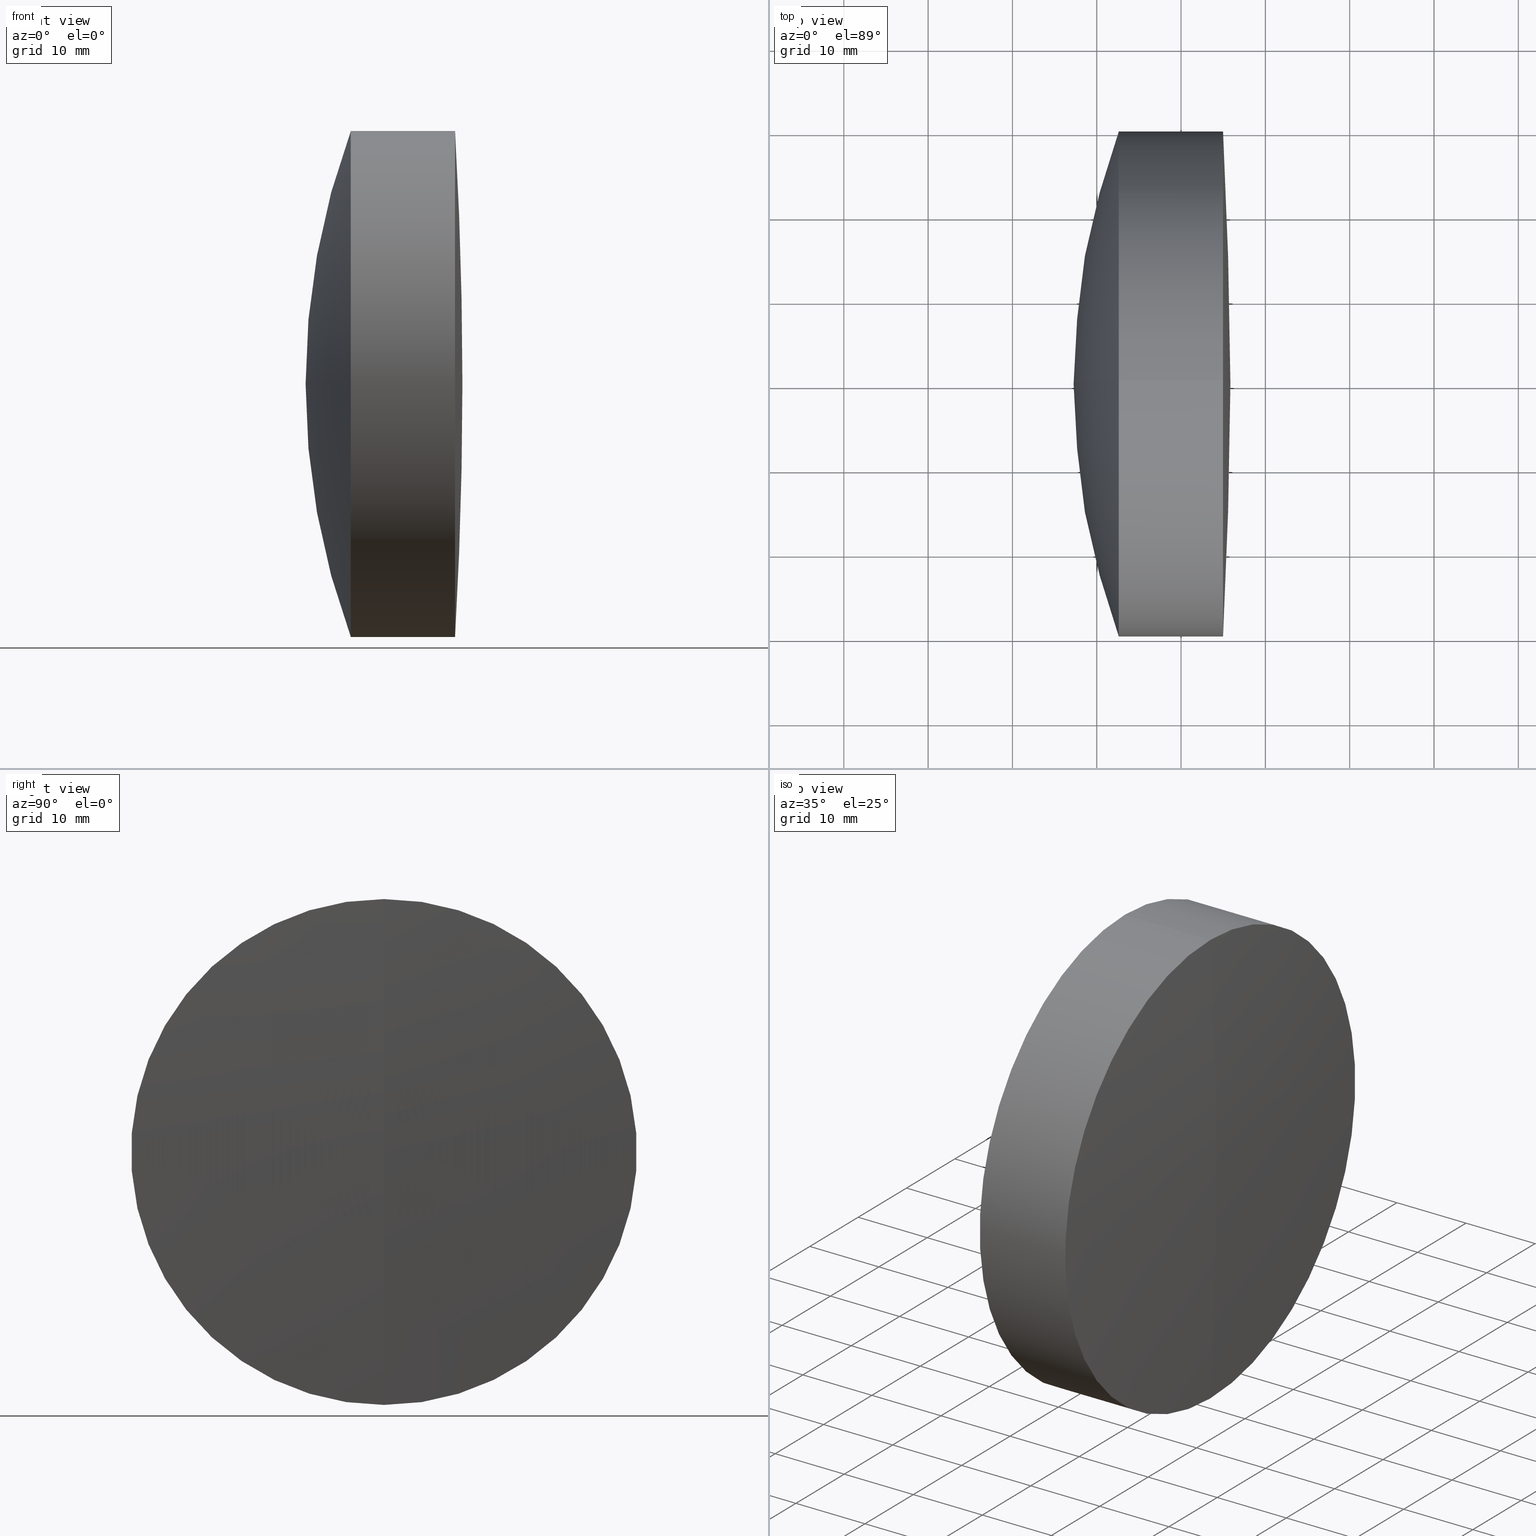
[diagram: canonical four-view strip — front | top / right | iso, engineering-drawing reading convention]
A machine part, canonical four-view strip (front | top / right | iso — engineering-drawing reading convention). The complete STEP part file that produces these views, byte-faithful:
ISO-10303-21;
HEADER;
FILE_DESCRIPTION (( 'STEP AP214' ),
    '1' );
FILE_NAME ('145096.STEP',
    '2019-05-28T01:51:14',
    ( 'user' ),
    ( '΢���й�' ),
    'SwSTEP 2.0',
    'SolidWorks 2016',
    '' );
FILE_SCHEMA (( 'AUTOMOTIVE_DESIGN' ));
ENDSEC;

DATA;
#1 = AXIS2_PLACEMENT_3D ( 'NONE', #165, #191, #329 ) ;
#2 = ORIENTED_EDGE ( 'NONE', *, *, #232, .T. ) ;
#3 =( LENGTH_UNIT ( ) NAMED_UNIT ( * ) SI_UNIT ( .MILLI., .METRE. ) );
#4 = CARTESIAN_POINT ( 'NONE',  ( 285.4402420783391700, 0.0000000000000000000, 0.0000000000000000000 ) ) ;
#5 = FILL_AREA_STYLE_COLOUR ( '', #227 ) ;
#6 = EDGE_CURVE ( 'NONE', #287, #156, #171, .T. ) ;
#7 = DIRECTION ( 'NONE',  ( -0.0000000000000000000, 1.000000000000000000, 1.224646799147353200E-016 ) ) ;
#8 = VERTEX_POINT ( 'NONE', #184 ) ;
#9 = MECHANICAL_DESIGN_GEOMETRIC_PRESENTATION_REPRESENTATION (  '', ( #124 ), #340 ) ;
#10 = CARTESIAN_POINT ( 'NONE',  ( 285.4402420783391700, 3.673940397442063100E-015, -30.00000000000003200 ) ) ;
#11 = ADVANCED_FACE ( 'NONE', ( #346 ), #342, .T. ) ;
#12 = AXIS2_PLACEMENT_3D ( 'NONE', #245, #274, #114 ) ;
#13 = MECHANICAL_DESIGN_GEOMETRIC_PRESENTATION_REPRESENTATION (  '', ( #197 ), #271 ) ;
#14 = DIRECTION ( 'NONE',  ( -1.000000000000000000, -0.0000000000000000000, -0.0000000000000000000 ) ) ;
#15 = VERTEX_POINT ( 'NONE', #168 ) ;
#16 = DIRECTION ( 'NONE',  ( 0.0000000000000000000, 0.0000000000000000000, 1.000000000000000000 ) ) ;
#17 = EDGE_LOOP ( 'NONE', ( #230, #147, #180, #187 ) ) ;
#18 = ORIENTED_EDGE ( 'NONE', *, *, #23, .T. ) ;
#19 = PRESENTATION_LAYER_ASSIGNMENT (  '', '', ( #197 ) ) ;
#20 = ORIENTED_EDGE ( 'NONE', *, *, #176, .T. ) ;
#21 = CARTESIAN_POINT ( 'NONE',  ( 295.8536255512254300, 0.0000000000000000000, 3.158486559680939000E-014 ) ) ;
#22 = DIRECTION ( 'NONE',  ( 0.0000000000000000000, 1.000000000000000000, 0.0000000000000000000 ) ) ;
#23 = EDGE_CURVE ( 'NONE', #214, #94, #69, .T. ) ;
#24 = AXIS2_PLACEMENT_3D ( 'NONE', #215, #267, #163 ) ;
#25 = DIRECTION ( 'NONE',  ( -1.000000000000000000, -0.0000000000000000000, -0.0000000000000000000 ) ) ;
#26 = ORIENTED_EDGE ( 'NONE', *, *, #130, .F. ) ;
#27 = CARTESIAN_POINT ( 'NONE',  ( -219.9663744487746400, 0.0000000000000000000, 0.0000000000000000000 ) ) ;
#28 = MANIFOLD_SOLID_BREP ( '��ת1', #164 ) ;
#29 = SURFACE_SIDE_STYLE ('',( #257 ) ) ;
#30 = DIRECTION ( 'NONE',  ( -1.000000000000000000, -0.0000000000000000000, -0.0000000000000000000 ) ) ;
#31 = FILL_AREA_STYLE_COLOUR ( '', #127 ) ;
#32 = VERTEX_POINT ( 'NONE', #289 ) ;
#33 = CARTESIAN_POINT ( 'NONE',  ( 294.9804892177594400, 0.0000000000000000000, 30.00000000000001400 ) ) ;
#34 = CARTESIAN_POINT ( 'NONE',  ( 216.1226255512254100, 0.0000000000000000000, 0.0000000000000000000 ) ) ;
#35 = DIRECTION ( 'NONE',  ( 0.0000000000000000000, 0.0000000000000000000, 1.000000000000000000 ) ) ;
#36 = CARTESIAN_POINT ( 'NONE',  ( 294.9804892177594400, 3.673940397442061500E-015, -30.00000000000001400 ) ) ;
#37 = ORIENTED_EDGE ( 'NONE', *, *, #99, .F. ) ;
#38 = ADVANCED_FACE ( 'NONE', ( #258 ), #285, .T. ) ;
#39 = ORIENTED_EDGE ( 'NONE', *, *, #242, .T. ) ;
#40 = CYLINDRICAL_SURFACE ( 'NONE', #42, 30.00000000000002100 ) ;
#41 = SURFACE_STYLE_FILL_AREA ( #76 ) ;
#42 = AXIS2_PLACEMENT_3D ( 'NONE', #221, #347, #35 ) ;
#43 = FACE_OUTER_BOUND ( 'NONE', #129, .T. ) ;
#44 = CIRCLE ( 'NONE', #179, 75.53099999999997700 ) ;
#45 = CLOSED_SHELL ( 'NONE', ( #38, #116, #307, #223, #334, #278 ) ) ;
#46 = AXIS2_PLACEMENT_3D ( 'NONE', #200, #14, #169 ) ;
#47 = SPHERICAL_SURFACE ( 'NONE', #236, 515.8200000000000500 ) ;
#48 = CARTESIAN_POINT ( 'NONE',  ( 124.5233095260452400, 0.0000000000000000000, 0.0000000000000000000 ) ) ;
#49 = UNCERTAINTY_MEASURE_WITH_UNIT (LENGTH_MEASURE( 1.000000000000000100E-005 ), #243, 'distance_accuracy_value', 'NONE');
#50 = SURFACE_SIDE_STYLE ('',( #41 ) ) ;
#51 = APPLICATION_PROTOCOL_DEFINITION ( 'draft international standard', 'automotive_design', 1998, #239 ) ;
#52 = FACE_OUTER_BOUND ( 'NONE', #234, .T. ) ;
#53 = ORIENTED_EDGE ( 'NONE', *, *, #64, .F. ) ;
#54 = APPLICATION_CONTEXT ( 'automotive_design' ) ;
#55 = PRESENTATION_STYLE_ASSIGNMENT (( #186 ) ) ;
#56 = SURFACE_STYLE_USAGE ( .BOTH. , #240 ) ;
#57 = DIRECTION ( 'NONE',  ( 0.0000000000000000000, -1.000000000000000000, -1.224646799147353200E-016 ) ) ;
#58 = DIRECTION ( 'NONE',  ( 0.0000000000000000000, 0.0000000000000000000, 1.000000000000000000 ) ) ;
#59 = DIRECTION ( 'NONE',  ( -0.0000000000000000000, -1.000000000000000000, -0.0000000000000000000 ) ) ;
#60 = DIRECTION ( 'NONE',  ( 0.0000000000000000000, 0.0000000000000000000, -1.000000000000000000 ) ) ;
#61 = VERTEX_POINT ( 'NONE', #316 ) ;
#62 = FACE_OUTER_BOUND ( 'NONE', #345, .T. ) ;
#63 = CARTESIAN_POINT ( 'NONE',  ( 285.4402420783391700, 0.0000000000000000000, 30.00000000000000000 ) ) ;
#64 = EDGE_CURVE ( 'NONE', #68, #211, #88, .T. ) ;
#65 = ADVANCED_FACE ( 'NONE', ( #152 ), #98, .T. ) ;
#66 = AXIS2_PLACEMENT_3D ( 'NONE', #320, #123, #276 ) ;
#67 = DIRECTION ( 'NONE',  ( 0.0000000000000000000, 0.0000000000000000000, 1.000000000000000000 ) ) ;
#68 = VERTEX_POINT ( 'NONE', #21 ) ;
#69 = CIRCLE ( 'NONE', #319, 75.53099999999999200 ) ;
#70 = CIRCLE ( 'NONE', #95, 30.00000000000002500 ) ;
#71 = ORIENTED_EDGE ( 'NONE', *, *, #305, .F. ) ;
#72 = ORIENTED_EDGE ( 'NONE', *, *, #212, .F. ) ;
#73 = PRESENTATION_STYLE_ASSIGNMENT (( #56 ) ) ;
#74 = AXIS2_PLACEMENT_3D ( 'NONE', #204, #177, #339 ) ;
#75 = CIRCLE ( 'NONE', #46, 30.00000000000000000 ) ;
#76 = FILL_AREA_STYLE ('',( #5 ) ) ;
#77 = LINE ( 'NONE', #295, #254 ) ;
#78 = EDGE_LOOP ( 'NONE', ( #53, #220, #26 ) ) ;
#79 = PRODUCT_CONTEXT ( 'NONE', #54, 'mechanical' ) ;
#80 = FACE_OUTER_BOUND ( 'NONE', #284, .T. ) ;
#81 =( NAMED_UNIT ( * ) PLANE_ANGLE_UNIT ( ) SI_UNIT ( $, .RADIAN. ) );
#82 = APPLICATION_PROTOCOL_DEFINITION ( 'draft international standard', 'automotive_design', 1998, #54 ) ;
#83 = CARTESIAN_POINT ( 'NONE',  ( -0.5519199926577972300, 3.673940397442062300E-015, -30.00000000000002100 ) ) ;
#84 = PRESENTATION_STYLE_ASSIGNMENT (( #213 ) ) ;
#85 = CARTESIAN_POINT ( 'NONE',  ( 291.6536255512254500, 0.0000000000000000000, 4.624939869319936200E-015 ) ) ;
#86 = ORIENTED_EDGE ( 'NONE', *, *, #343, .F. ) ;
#87 = CARTESIAN_POINT ( 'NONE',  ( 363.8496255512254700, 0.0000000000000000000, 1.092194461860211400E-015 ) ) ;
#88 = CIRCLE ( 'NONE', #12, 515.8200000000000500 ) ;
#89 = DIRECTION ( 'NONE',  ( 0.0000000000000000000, -1.224646799147353200E-016, 1.000000000000000000 ) ) ;
#90 = AXIS2_PLACEMENT_3D ( 'NONE', #137, #299, #111 ) ;
#91 = CARTESIAN_POINT ( 'NONE',  ( 216.1226255512254100, 0.0000000000000000000, 0.0000000000000000000 ) ) ;
#92 =( NAMED_UNIT ( * ) SI_UNIT ( $, .STERADIAN. ) SOLID_ANGLE_UNIT ( ) );
#93 = ADVANCED_FACE ( 'NONE', ( #256 ), #110, .T. ) ;
#94 = VERTEX_POINT ( 'NONE', #10 ) ;
#95 = AXIS2_PLACEMENT_3D ( 'NONE', #145, #306, #117 ) ;
#96 = FILL_AREA_STYLE_COLOUR ( '', #97 ) ;
#97 = COLOUR_RGB ( '',1.000000000000000000, 1.000000000000000000, 1.000000000000000000 ) ;
#98 = SPHERICAL_SURFACE ( 'NONE', #279, 86.59599999999997500 ) ;
#99 = EDGE_CURVE ( 'NONE', #300, #211, #265, .T. ) ;
#100 = ORIENTED_EDGE ( 'NONE', *, *, #301, .F. ) ;
#101 = FACE_OUTER_BOUND ( 'NONE', #17, .T. ) ;
#102 = ORIENTED_EDGE ( 'NONE', *, *, #286, .F. ) ;
#103 =( NAMED_UNIT ( * ) SI_UNIT ( $, .STERADIAN. ) SOLID_ANGLE_UNIT ( ) );
#104 = VECTOR ( 'NONE', #25, 1000.000000000000000 ) ;
#105 = DIRECTION ( 'NONE',  ( 0.0000000000000000000, 0.0000000000000000000, 1.000000000000000000 ) ) ;
#106 = CIRCLE ( 'NONE', #24, 30.00000000000000000 ) ;
#107 =( NAMED_UNIT ( * ) SI_UNIT ( $, .STERADIAN. ) SOLID_ANGLE_UNIT ( ) );
#108 = ORIENTED_EDGE ( 'NONE', *, *, #130, .T. ) ;
#109 = DIRECTION ( 'NONE',  ( -0.0000000000000000000, 1.000000000000000000, 1.224646799147353200E-016 ) ) ;
#110 = SPHERICAL_SURFACE ( 'NONE', #172, 75.53099999999997700 ) ;
#111 = DIRECTION ( 'NONE',  ( 0.0000000000000000000, 0.0000000000000000000, 1.000000000000000000 ) ) ;
#112 =( NAMED_UNIT ( * ) PLANE_ANGLE_UNIT ( ) SI_UNIT ( $, .RADIAN. ) );
#113 = UNCERTAINTY_MEASURE_WITH_UNIT (LENGTH_MEASURE( 1.000000000000000100E-005 ), #3, 'distance_accuracy_value', 'NONE');
#114 = DIRECTION ( 'NONE',  ( 0.0000000000000000000, 0.0000000000000000000, -1.000000000000000000 ) ) ;
#115 = SPHERICAL_SURFACE ( 'NONE', #161, 75.53099999999999200 ) ;
#116 = ADVANCED_FACE ( 'NONE', ( #62 ), #40, .T. ) ;
#117 = DIRECTION ( 'NONE',  ( 0.0000000000000000000, 0.0000000000000000000, 1.000000000000000000 ) ) ;
#118 = AXIS2_PLACEMENT_3D ( 'NONE', #228, #203, #16 ) ;
#119 = LINE ( 'NONE', #251, #253 ) ;
#120 = FACE_OUTER_BOUND ( 'NONE', #121, .T. ) ;
#121 = EDGE_LOOP ( 'NONE', ( #344, #175, #275 ) ) ;
#122 = CYLINDRICAL_SURFACE ( 'NONE', #1, 30.00000000000002100 ) ;
#123 = DIRECTION ( 'NONE',  ( -0.0000000000000000000, -1.000000000000000000, -0.0000000000000000000 ) ) ;
#124 = STYLED_ITEM ( 'NONE', ( #55 ), #178 ) ;
#125 = SHAPE_DEFINITION_REPRESENTATION ( #128, #178 ) ;
#126 = ORIENTED_EDGE ( 'NONE', *, *, #154, .T. ) ;
#127 = COLOUR_RGB ( '',1.000000000000000000, 1.000000000000000000, 1.000000000000000000 ) ;
#128 = PRODUCT_DEFINITION_SHAPE ( 'NONE', 'NONE',  #210 ) ;
#129 = EDGE_LOOP ( 'NONE', ( #102, #18, #202 ) ) ;
#130 = EDGE_CURVE ( 'NONE', #211, #300, #206, .T. ) ;
#131 = AXIS2_PLACEMENT_3D ( 'NONE', #273, #57, #136 ) ;
#132 = CARTESIAN_POINT ( 'NONE',  ( 363.8496255512254700, 0.0000000000000000000, 1.092194461860211400E-015 ) ) ;
#133 = PRODUCT ( '145096', '145096', '', ( #79 ) ) ;
#134 = CARTESIAN_POINT ( 'NONE',  ( 124.5233095260452400, 0.0000000000000000000, 30.00000000000000000 ) ) ;
#135 = ORIENTED_EDGE ( 'NONE', *, *, #305, .T. ) ;
#136 = DIRECTION ( 'NONE',  ( 0.0000000000000000000, 1.224646799147353200E-016, -1.000000000000000000 ) ) ;
#137 = CARTESIAN_POINT ( 'NONE',  ( 285.4402420783391700, 0.0000000000000000000, 0.0000000000000000000 ) ) ;
#138 = PRESENTATION_LAYER_ASSIGNMENT (  '', '', ( #124 ) ) ;
#139 = DIRECTION ( 'NONE',  ( -1.000000000000000000, -0.0000000000000000000, -0.0000000000000000000 ) ) ;
#140 = DIRECTION ( 'NONE',  ( 0.0000000000000000000, -1.000000000000000000, 0.0000000000000000000 ) ) ;
#141 = ORIENTED_EDGE ( 'NONE', *, *, #149, .T. ) ;
#142 = CARTESIAN_POINT ( 'NONE',  ( 216.1226255512254100, 0.0000000000000000000, 0.0000000000000000000 ) ) ;
#143 = CARTESIAN_POINT ( 'NONE',  ( 285.4402420783391700, 3.673940397442059200E-015, -30.00000000000000000 ) ) ;
#144 = CARTESIAN_POINT ( 'NONE',  ( 282.6162136076169400, 0.0000000000000000000, 0.0000000000000000000 ) ) ;
#145 = CARTESIAN_POINT ( 'NONE',  ( 285.4402420783391700, 0.0000000000000000000, 0.0000000000000000000 ) ) ;
#146 = SPHERICAL_SURFACE ( 'NONE', #173, 75.53099999999997700 ) ;
#147 = ORIENTED_EDGE ( 'NONE', *, *, #99, .T. ) ;
#148 = EDGE_LOOP ( 'NONE', ( #100, #182, #338 ) ) ;
#149 = EDGE_CURVE ( 'NONE', #61, #156, #328, .T. ) ;
#150 = AXIS2_PLACEMENT_3D ( 'NONE', #332, #140, #302 ) ;
#151 = ORIENTED_EDGE ( 'NONE', *, *, #6, .F. ) ;
#152 = FACE_OUTER_BOUND ( 'NONE', #315, .T. ) ;
#153 = DIRECTION ( 'NONE',  ( 0.0000000000000000000, -1.224646799147353200E-016, 1.000000000000000000 ) ) ;
#154 = EDGE_CURVE ( 'NONE', #156, #32, #309, .T. ) ;
#155 = PRODUCT_RELATED_PRODUCT_CATEGORY ( 'part', '', ( #133 ) ) ;
#156 = VERTEX_POINT ( 'NONE', #304 ) ;
#157 = EDGE_LOOP ( 'NONE', ( #308, #39, #291, #225 ) ) ;
#158 = SURFACE_STYLE_FILL_AREA ( #323 ) ;
#159 = DIRECTION ( 'NONE',  ( 0.0000000000000000000, 0.0000000000000000000, 1.000000000000000000 ) ) ;
#160 =( NAMED_UNIT ( * ) PLANE_ANGLE_UNIT ( ) SI_UNIT ( $, .RADIAN. ) );
#161 = AXIS2_PLACEMENT_3D ( 'NONE', #322, #247, #190 ) ;
#162 = DIRECTION ( 'NONE',  ( -1.000000000000000000, -0.0000000000000000000, -0.0000000000000000000 ) ) ;
#163 = DIRECTION ( 'NONE',  ( 0.0000000000000000000, 0.0000000000000000000, 1.000000000000000000 ) ) ;
#164 = CLOSED_SHELL ( 'NONE', ( #93, #249, #65, #170, #11, #199 ) ) ;
#165 = CARTESIAN_POINT ( 'NONE',  ( -0.5519199926577972300, 0.0000000000000000000, 0.0000000000000000000 ) ) ;
#166 = DIRECTION ( 'NONE',  ( 0.0000000000000000000, 1.000000000000000000, 0.0000000000000000000 ) ) ;
#167 = DIRECTION ( 'NONE',  ( 0.0000000000000000000, 0.0000000000000000000, 1.000000000000000000 ) ) ;
#168 = CARTESIAN_POINT ( 'NONE',  ( 285.4402420783391700, 0.0000000000000000000, 30.00000000000003200 ) ) ;
#169 = DIRECTION ( 'NONE',  ( 0.0000000000000000000, 0.0000000000000000000, 1.000000000000000000 ) ) ;
#170 = ADVANCED_FACE ( 'NONE', ( #52 ), #314, .T. ) ;
#171 = LINE ( 'NONE', #134, #104 ) ;
#172 = AXIS2_PLACEMENT_3D ( 'NONE', #142, #166, #195 ) ;
#173 = AXIS2_PLACEMENT_3D ( 'NONE', #292, #333, #330 ) ;
#174 = SPHERICAL_SURFACE ( 'NONE', #331, 75.53099999999999200 ) ;
#175 = ORIENTED_EDGE ( 'NONE', *, *, #286, .T. ) ;
#176 = EDGE_CURVE ( 'NONE', #293, #61, #77, .T. ) ;
#177 = DIRECTION ( 'NONE',  ( -1.000000000000000000, -0.0000000000000000000, -0.0000000000000000000 ) ) ;
#178 = ADVANCED_BREP_SHAPE_REPRESENTATION ( '145096', ( #28, #233, #283 ), #238 ) ;
#179 = AXIS2_PLACEMENT_3D ( 'NONE', #272, #109, #298 ) ;
#180 = ORIENTED_EDGE ( 'NONE', *, *, #262, .T. ) ;
#181 = CIRCLE ( 'NONE', #90, 30.00000000000000000 ) ;
#182 = ORIENTED_EDGE ( 'NONE', *, *, #229, .T. ) ;
#183 = DIRECTION ( 'NONE',  ( 0.0000000000000000000, 0.0000000000000000000, 1.000000000000000000 ) ) ;
#184 = CARTESIAN_POINT ( 'NONE',  ( 291.6536255512253900, 0.0000000000000000000, 4.624939869319935400E-015 ) ) ;
#185 = AXIS2_PLACEMENT_3D ( 'NONE', #144, #139, #264 ) ;
#186 = SURFACE_STYLE_USAGE ( .BOTH. , #29 ) ;
#187 = ORIENTED_EDGE ( 'NONE', *, *, #248, .F. ) ;
#188 = DIRECTION ( 'NONE',  ( -1.000000000000000000, -0.0000000000000000000, -0.0000000000000000000 ) ) ;
#189 =( LENGTH_UNIT ( ) NAMED_UNIT ( * ) SI_UNIT ( .MILLI., .METRE. ) );
#190 = DIRECTION ( 'NONE',  ( 0.0000000000000000000, 0.0000000000000000000, 1.000000000000000000 ) ) ;
#191 = DIRECTION ( 'NONE',  ( -1.000000000000000000, -0.0000000000000000000, -0.0000000000000000000 ) ) ;
#192 = PRODUCT_DEFINITION_FORMATION_WITH_SPECIFIED_SOURCE ( '�κ�', '', #133, .NOT_KNOWN. ) ;
#193 = CARTESIAN_POINT ( 'NONE',  ( 216.1226255512254100, 0.0000000000000000000, 0.0000000000000000000 ) ) ;
#194 = DIRECTION ( 'NONE',  ( 0.0000000000000000000, 1.000000000000000000, 0.0000000000000000000 ) ) ;
#195 = DIRECTION ( 'NONE',  ( 0.0000000000000000000, 0.0000000000000000000, 1.000000000000000000 ) ) ;
#196 = AXIS2_PLACEMENT_3D ( 'NONE', #48, #188, #159 ) ;
#197 = STYLED_ITEM ( 'NONE', ( #84 ), #233 ) ;
#198 = CARTESIAN_POINT ( 'NONE',  ( -219.9663744487746400, 0.0000000000000000000, 0.0000000000000000000 ) ) ;
#199 = ADVANCED_FACE ( 'NONE', ( #325 ), #146, .T. ) ;
#200 = CARTESIAN_POINT ( 'NONE',  ( 285.4402420783391700, 0.0000000000000000000, 0.0000000000000000000 ) ) ;
#201 = CIRCLE ( 'NONE', #288, 30.00000000000002500 ) ;
#202 = ORIENTED_EDGE ( 'NONE', *, *, #248, .T. ) ;
#203 = DIRECTION ( 'NONE',  ( -1.000000000000000000, -0.0000000000000000000, -0.0000000000000000000 ) ) ;
#204 = CARTESIAN_POINT ( 'NONE',  ( 294.9804892177594400, 0.0000000000000000000, 0.0000000000000000000 ) ) ;
#205 = EDGE_LOOP ( 'NONE', ( #341, #20, #72, #151 ) ) ;
#206 = CIRCLE ( 'NONE', #118, 30.00000000000001400 ) ;
#207 = STYLED_ITEM ( 'NONE', ( #73 ), #28 ) ;
#208 = EDGE_LOOP ( 'NONE', ( #326, #270, #241 ) ) ;
#209 = EDGE_CURVE ( 'NONE', #68, #300, #281, .T. ) ;
#210 = PRODUCT_DEFINITION ( 'δ֪', '', #192, #282 ) ;
#211 = VERTEX_POINT ( 'NONE', #33 ) ;
#212 = EDGE_CURVE ( 'NONE', #156, #61, #106, .T. ) ;
#213 = SURFACE_STYLE_USAGE ( .BOTH. , #50 ) ;
#214 = VERTEX_POINT ( 'NONE', #85 ) ;
#215 = CARTESIAN_POINT ( 'NONE',  ( 282.6162136076169400, 0.0000000000000000000, 0.0000000000000000000 ) ) ;
#216 = FILL_AREA_STYLE ('',( #31 ) ) ;
#217 = DIRECTION ( 'NONE',  ( -0.0000000000000000000, 1.000000000000000000, 1.224646799147353200E-016 ) ) ;
#218 = CARTESIAN_POINT ( 'NONE',  ( -219.9663744487746400, 0.0000000000000000000, 0.0000000000000000000 ) ) ;
#219 = DIRECTION ( 'NONE',  ( 0.0000000000000000000, 0.0000000000000000000, 1.000000000000000000 ) ) ;
#220 = ORIENTED_EDGE ( 'NONE', *, *, #209, .T. ) ;
#221 = CARTESIAN_POINT ( 'NONE',  ( -0.5519199926577972300, 0.0000000000000000000, 0.0000000000000000000 ) ) ;
#222 = DIRECTION ( 'NONE',  ( 0.0000000000000000000, 1.000000000000000000, 0.0000000000000000000 ) ) ;
#223 = ADVANCED_FACE ( 'NONE', ( #120 ), #115, .F. ) ;
#224 = MECHANICAL_DESIGN_GEOMETRIC_PRESENTATION_REPRESENTATION (  '', ( #207 ), #294 ) ;
#225 = ORIENTED_EDGE ( 'NONE', *, *, #149, .F. ) ;
#226 = CIRCLE ( 'NONE', #150, 75.53099999999997700 ) ;
#227 = COLOUR_RGB ( '',1.000000000000000000, 1.000000000000000000, 1.000000000000000000 ) ;
#228 = CARTESIAN_POINT ( 'NONE',  ( 294.9804892177594400, 0.0000000000000000000, 0.0000000000000000000 ) ) ;
#229 = EDGE_CURVE ( 'NONE', #8, #293, #44, .T. ) ;
#230 = ORIENTED_EDGE ( 'NONE', *, *, #232, .F. ) ;
#231 = DIRECTION ( 'NONE',  ( -1.000000000000000000, -0.0000000000000000000, -0.0000000000000000000 ) ) ;
#232 = EDGE_CURVE ( 'NONE', #300, #94, #268, .T. ) ;
#233 = MANIFOLD_SOLID_BREP ( '��ת3', #45 ) ;
#234 = EDGE_LOOP ( 'NONE', ( #237, #261, #135 ) ) ;
#235 = UNCERTAINTY_MEASURE_WITH_UNIT (LENGTH_MEASURE( 1.000000000000000100E-005 ), #189, 'distance_accuracy_value', 'NONE');
#236 = AXIS2_PLACEMENT_3D ( 'NONE', #198, #222, #167 ) ;
#237 = ORIENTED_EDGE ( 'NONE', *, *, #154, .F. ) ;
#238 =( GEOMETRIC_REPRESENTATION_CONTEXT ( 3 ) GLOBAL_UNCERTAINTY_ASSIGNED_CONTEXT ( ( #235 ) ) GLOBAL_UNIT_ASSIGNED_CONTEXT ( ( #189, #297, #107 ) ) REPRESENTATION_CONTEXT ( 'NONE', 'WORKASPACE' ) );
#239 = APPLICATION_CONTEXT ( 'automotive_design' ) ;
#240 = SURFACE_SIDE_STYLE ('',( #158 ) ) ;
#241 = ORIENTED_EDGE ( 'NONE', *, *, #242, .F. ) ;
#242 = EDGE_CURVE ( 'NONE', #293, #287, #75, .T. ) ;
#243 =( LENGTH_UNIT ( ) NAMED_UNIT ( * ) SI_UNIT ( .MILLI., .METRE. ) );
#244 = DIRECTION ( 'NONE',  ( 0.0000000000000000000, 1.000000000000000000, -0.0000000000000000000 ) ) ;
#245 = CARTESIAN_POINT ( 'NONE',  ( -219.9663744487746400, 0.0000000000000000000, 0.0000000000000000000 ) ) ;
#246 = DIRECTION ( 'NONE',  ( 0.0000000000000000000, -1.000000000000000000, 0.0000000000000000000 ) ) ;
#247 = DIRECTION ( 'NONE',  ( 0.0000000000000000000, 1.000000000000000000, 0.0000000000000000000 ) ) ;
#248 = EDGE_CURVE ( 'NONE', #94, #15, #70, .T. ) ;
#249 = ADVANCED_FACE ( 'NONE', ( #263 ), #321, .T. ) ;
#250 = AXIS2_PLACEMENT_3D ( 'NONE', #336, #252, #67 ) ;
#251 = CARTESIAN_POINT ( 'NONE',  ( -0.5519199926577972300, 0.0000000000000000000, 30.00000000000002100 ) ) ;
#252 = DIRECTION ( 'NONE',  ( -1.000000000000000000, -0.0000000000000000000, -0.0000000000000000000 ) ) ;
#253 = VECTOR ( 'NONE', #277, 1000.000000000000000 ) ;
#254 = VECTOR ( 'NONE', #231, 1000.000000000000000 ) ;
#255 = ORIENTED_EDGE ( 'NONE', *, *, #262, .F. ) ;
#256 = FACE_OUTER_BOUND ( 'NONE', #148, .T. ) ;
#257 = SURFACE_STYLE_FILL_AREA ( #216 ) ;
#258 = FACE_OUTER_BOUND ( 'NONE', #78, .T. ) ;
#259 = AXIS2_PLACEMENT_3D ( 'NONE', #27, #22, #183 ) ;
#260 = AXIS2_PLACEMENT_3D ( 'NONE', #87, #244, #58 ) ;
#261 = ORIENTED_EDGE ( 'NONE', *, *, #212, .T. ) ;
#262 = EDGE_CURVE ( 'NONE', #211, #15, #119, .T. ) ;
#263 = FACE_OUTER_BOUND ( 'NONE', #205, .T. ) ;
#264 = DIRECTION ( 'NONE',  ( 0.0000000000000000000, 0.0000000000000000000, 1.000000000000000000 ) ) ;
#265 = CIRCLE ( 'NONE', #74, 30.00000000000001400 ) ;
#266 = PRESENTATION_LAYER_ASSIGNMENT (  '', '', ( #207 ) ) ;
#267 = DIRECTION ( 'NONE',  ( -1.000000000000000000, -0.0000000000000000000, -0.0000000000000000000 ) ) ;
#268 = LINE ( 'NONE', #83, #337 ) ;
#269 = DIRECTION ( 'NONE',  ( 1.000000000000000000, 0.0000000000000000000, 0.0000000000000000000 ) ) ;
#270 = ORIENTED_EDGE ( 'NONE', *, *, #301, .T. ) ;
#271 =( GEOMETRIC_REPRESENTATION_CONTEXT ( 3 ) GLOBAL_UNCERTAINTY_ASSIGNED_CONTEXT ( ( #335 ) ) GLOBAL_UNIT_ASSIGNED_CONTEXT ( ( #318, #112, #92 ) ) REPRESENTATION_CONTEXT ( 'NONE', 'WORKASPACE' ) );
#272 = CARTESIAN_POINT ( 'NONE',  ( 216.1226255512254100, 0.0000000000000000000, 0.0000000000000000000 ) ) ;
#273 = CARTESIAN_POINT ( 'NONE',  ( 363.8496255512254700, 0.0000000000000000000, 1.092194461860211400E-015 ) ) ;
#274 = DIRECTION ( 'NONE',  ( 0.0000000000000000000, -1.000000000000000000, 0.0000000000000000000 ) ) ;
#275 = ORIENTED_EDGE ( 'NONE', *, *, #343, .T. ) ;
#276 = DIRECTION ( 'NONE',  ( 0.0000000000000000000, 0.0000000000000000000, -1.000000000000000000 ) ) ;
#277 = DIRECTION ( 'NONE',  ( -1.000000000000000000, -0.0000000000000000000, -0.0000000000000000000 ) ) ;
#278 = ADVANCED_FACE ( 'NONE', ( #80 ), #47, .T. ) ;
#279 = AXIS2_PLACEMENT_3D ( 'NONE', #132, #59, #303 ) ;
#280 = ORIENTED_EDGE ( 'NONE', *, *, #209, .F. ) ;
#281 = CIRCLE ( 'NONE', #290, 515.8200000000000500 ) ;
#282 = PRODUCT_DEFINITION_CONTEXT ( 'detailed design', #239, 'design' ) ;
#283 = AXIS2_PLACEMENT_3D ( 'NONE', #296, #105, #269 ) ;
#284 = EDGE_LOOP ( 'NONE', ( #280, #312, #37 ) ) ;
#285 = SPHERICAL_SURFACE ( 'NONE', #259, 515.8200000000000500 ) ;
#286 = EDGE_CURVE ( 'NONE', #214, #15, #310, .T. ) ;
#287 = VERTEX_POINT ( 'NONE', #63 ) ;
#288 = AXIS2_PLACEMENT_3D ( 'NONE', #4, #162, #327 ) ;
#289 = CARTESIAN_POINT ( 'NONE',  ( 277.2536255512254700, 0.0000000000000000000, -4.210281249087997900E-015 ) ) ;
#290 = AXIS2_PLACEMENT_3D ( 'NONE', #218, #217, #153 ) ;
#291 = ORIENTED_EDGE ( 'NONE', *, *, #6, .T. ) ;
#292 = CARTESIAN_POINT ( 'NONE',  ( 216.1226255512254100, 0.0000000000000000000, 0.0000000000000000000 ) ) ;
#293 = VERTEX_POINT ( 'NONE', #143 ) ;
#294 =( GEOMETRIC_REPRESENTATION_CONTEXT ( 3 ) GLOBAL_UNCERTAINTY_ASSIGNED_CONTEXT ( ( #49 ) ) GLOBAL_UNIT_ASSIGNED_CONTEXT ( ( #243, #81, #103 ) ) REPRESENTATION_CONTEXT ( 'NONE', 'WORKASPACE' ) );
#295 = CARTESIAN_POINT ( 'NONE',  ( 124.5233095260452400, 3.673940397442059200E-015, -30.00000000000000000 ) ) ;
#296 = CARTESIAN_POINT ( 'NONE',  ( 0.0000000000000000000, 0.0000000000000000000, 0.0000000000000000000 ) ) ;
#297 =( NAMED_UNIT ( * ) PLANE_ANGLE_UNIT ( ) SI_UNIT ( $, .RADIAN. ) );
#298 = DIRECTION ( 'NONE',  ( 0.0000000000000000000, -1.224646799147353200E-016, 1.000000000000000000 ) ) ;
#299 = DIRECTION ( 'NONE',  ( -1.000000000000000000, -0.0000000000000000000, -0.0000000000000000000 ) ) ;
#300 = VERTEX_POINT ( 'NONE', #36 ) ;
#301 = EDGE_CURVE ( 'NONE', #8, #287, #226, .T. ) ;
#302 = DIRECTION ( 'NONE',  ( 0.0000000000000000000, 0.0000000000000000000, -1.000000000000000000 ) ) ;
#303 = DIRECTION ( 'NONE',  ( 0.0000000000000000000, 0.0000000000000000000, -1.000000000000000000 ) ) ;
#304 = CARTESIAN_POINT ( 'NONE',  ( 282.6162136076169400, -3.673940397442059200E-015, 30.00000000000000000 ) ) ;
#305 = EDGE_CURVE ( 'NONE', #61, #32, #313, .T. ) ;
#306 = DIRECTION ( 'NONE',  ( -1.000000000000000000, -0.0000000000000000000, -0.0000000000000000000 ) ) ;
#307 = ADVANCED_FACE ( 'NONE', ( #43 ), #174, .F. ) ;
#308 = ORIENTED_EDGE ( 'NONE', *, *, #176, .F. ) ;
#309 = CIRCLE ( 'NONE', #131, 86.59599999999997500 ) ;
#310 = CIRCLE ( 'NONE', #311, 75.53099999999999200 ) ;
#311 = AXIS2_PLACEMENT_3D ( 'NONE', #91, #246, #60 ) ;
#312 = ORIENTED_EDGE ( 'NONE', *, *, #64, .T. ) ;
#313 = CIRCLE ( 'NONE', #260, 86.59599999999997500 ) ;
#314 = SPHERICAL_SURFACE ( 'NONE', #66, 86.59599999999997500 ) ;
#315 = EDGE_LOOP ( 'NONE', ( #141, #126, #71 ) ) ;
#316 = CARTESIAN_POINT ( 'NONE',  ( 282.6162136076169400, 0.0000000000000000000, -30.00000000000000000 ) ) ;
#317 = EDGE_CURVE ( 'NONE', #287, #293, #181, .T. ) ;
#318 =( LENGTH_UNIT ( ) NAMED_UNIT ( * ) SI_UNIT ( .MILLI., .METRE. ) );
#319 = AXIS2_PLACEMENT_3D ( 'NONE', #193, #7, #89 ) ;
#320 = CARTESIAN_POINT ( 'NONE',  ( 363.8496255512254700, 0.0000000000000000000, 1.092194461860211400E-015 ) ) ;
#321 = CYLINDRICAL_SURFACE ( 'NONE', #250, 30.00000000000000000 ) ;
#322 = CARTESIAN_POINT ( 'NONE',  ( 216.1226255512254100, 0.0000000000000000000, 0.0000000000000000000 ) ) ;
#323 = FILL_AREA_STYLE ('',( #96 ) ) ;
#324 =( NAMED_UNIT ( * ) SI_UNIT ( $, .STERADIAN. ) SOLID_ANGLE_UNIT ( ) );
#325 = FACE_OUTER_BOUND ( 'NONE', #208, .T. ) ;
#326 = ORIENTED_EDGE ( 'NONE', *, *, #229, .F. ) ;
#327 = DIRECTION ( 'NONE',  ( 0.0000000000000000000, 0.0000000000000000000, 1.000000000000000000 ) ) ;
#328 = CIRCLE ( 'NONE', #185, 30.00000000000000000 ) ;
#329 = DIRECTION ( 'NONE',  ( 0.0000000000000000000, 0.0000000000000000000, 1.000000000000000000 ) ) ;
#330 = DIRECTION ( 'NONE',  ( 0.0000000000000000000, 0.0000000000000000000, 1.000000000000000000 ) ) ;
#331 = AXIS2_PLACEMENT_3D ( 'NONE', #34, #194, #219 ) ;
#332 = CARTESIAN_POINT ( 'NONE',  ( 216.1226255512254100, 0.0000000000000000000, 0.0000000000000000000 ) ) ;
#333 = DIRECTION ( 'NONE',  ( 0.0000000000000000000, 1.000000000000000000, 0.0000000000000000000 ) ) ;
#334 = ADVANCED_FACE ( 'NONE', ( #101 ), #122, .T. ) ;
#335 = UNCERTAINTY_MEASURE_WITH_UNIT (LENGTH_MEASURE( 1.000000000000000100E-005 ), #318, 'distance_accuracy_value', 'NONE');
#336 = CARTESIAN_POINT ( 'NONE',  ( 124.5233095260452400, 0.0000000000000000000, 0.0000000000000000000 ) ) ;
#337 = VECTOR ( 'NONE', #30, 1000.000000000000000 ) ;
#338 = ORIENTED_EDGE ( 'NONE', *, *, #317, .F. ) ;
#339 = DIRECTION ( 'NONE',  ( 0.0000000000000000000, 0.0000000000000000000, 1.000000000000000000 ) ) ;
#340 =( GEOMETRIC_REPRESENTATION_CONTEXT ( 3 ) GLOBAL_UNCERTAINTY_ASSIGNED_CONTEXT ( ( #113 ) ) GLOBAL_UNIT_ASSIGNED_CONTEXT ( ( #3, #160, #324 ) ) REPRESENTATION_CONTEXT ( 'NONE', 'WORKASPACE' ) );
#341 = ORIENTED_EDGE ( 'NONE', *, *, #317, .T. ) ;
#342 = CYLINDRICAL_SURFACE ( 'NONE', #196, 30.00000000000000000 ) ;
#343 = EDGE_CURVE ( 'NONE', #15, #94, #201, .T. ) ;
#344 = ORIENTED_EDGE ( 'NONE', *, *, #23, .F. ) ;
#345 = EDGE_LOOP ( 'NONE', ( #108, #2, #86, #255 ) ) ;
#346 = FACE_OUTER_BOUND ( 'NONE', #157, .T. ) ;
#347 = DIRECTION ( 'NONE',  ( -1.000000000000000000, -0.0000000000000000000, -0.0000000000000000000 ) ) ;
ENDSEC;
END-ISO-10303-21;
